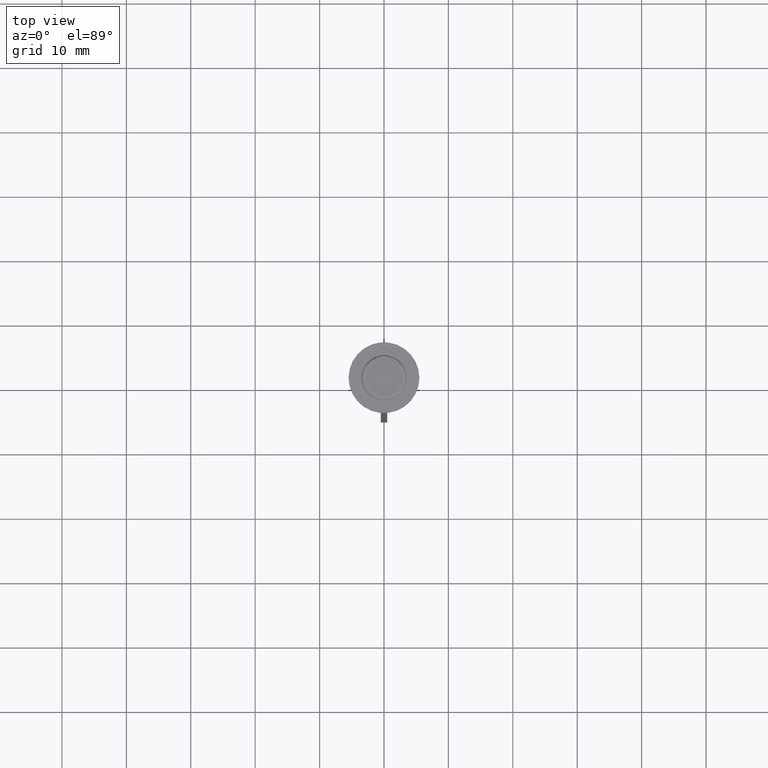
[diagram: clean part render]
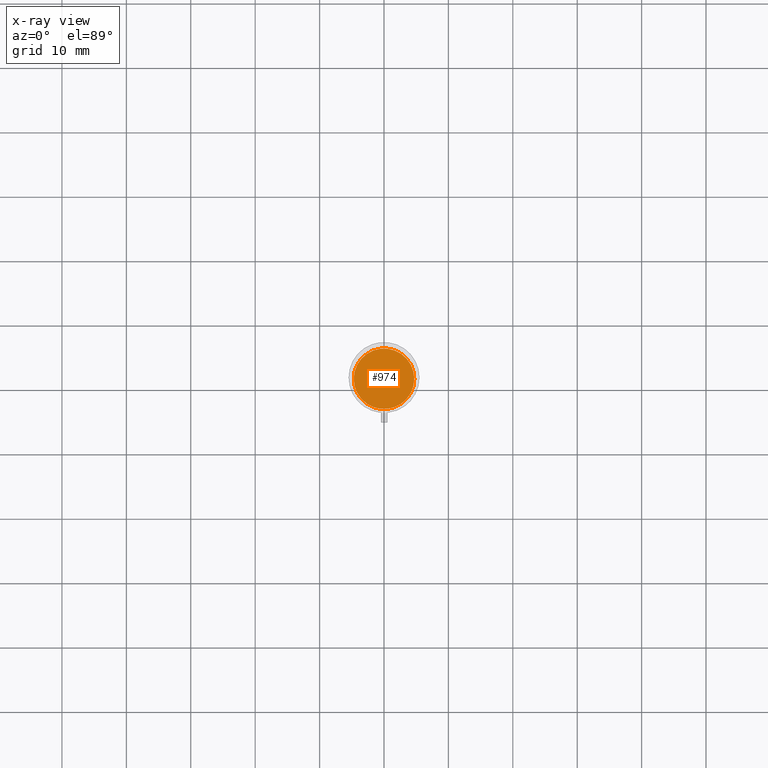
[diagram: x-ray — body ghosted, one internal face saturated and labeled with its STEP entity id]
A machine part, top view, then the same camera in x-ray: the body is ghosted and one INTERNAL B-rep face — a face not visible from any outside direction — is saturated and labeled: STEP entity #974.
In plain terms, the highlighted planar face has unit normal (0, 0, -1).
Its self-contained STEP definition (entity closure, byte-faithful):
#98 = CARTESIAN_POINT ( 'NONE',  ( 0.000000000000000000, 0.000000000000000000, -10.50000000000000178 ) ) ;
#584 = AXIS2_PLACEMENT_3D ( 'NONE', #1820, #1027, #1830 ) ;
#663 = EDGE_CURVE ( 'NONE', #2478, #1393, #951, .T. ) ;
#706 = CIRCLE ( 'NONE', #2306, 4.700000000000001066 ) ;
#907 = CARTESIAN_POINT ( 'NONE',  ( -4.700000000000001066, 0.000000000000000000, -10.50000000000000178 ) ) ;
#951 = CIRCLE ( 'NONE', #1613, 4.700000000000001066 ) ;
#974 = ADVANCED_FACE ( 'NONE', ( #2394 ), #1599, .F. ) ;
#1027 = DIRECTION ( 'NONE',  ( 0.000000000000000000, 0.000000000000000000, -1.000000000000000000 ) ) ;
#1137 = DIRECTION ( 'NONE',  ( -1.000000000000000000, 0.000000000000000000, 0.000000000000000000 ) ) ;
#1191 = EDGE_CURVE ( 'NONE', #1393, #2478, #706, .T. ) ;
#1267 = ORIENTED_EDGE ( 'NONE', *, *, #1191, .T. ) ;
#1292 = DIRECTION ( 'NONE',  ( -1.000000000000000000, 0.000000000000000000, 0.000000000000000000 ) ) ;
#1349 = EDGE_LOOP ( 'NONE', ( #2054, #1267 ) ) ;
#1393 = VERTEX_POINT ( 'NONE', #2008 ) ;
#1450 = DIRECTION ( 'NONE',  ( -0.000000000000000000, -0.000000000000000000, 1.000000000000000000 ) ) ;
#1508 = CARTESIAN_POINT ( 'NONE',  ( 0.000000000000000000, 0.000000000000000000, -10.50000000000000178 ) ) ;
#1599 = PLANE ( 'NONE',  #584 ) ;
#1613 = AXIS2_PLACEMENT_3D ( 'NONE', #98, #1450, #1292 ) ;
#1820 = CARTESIAN_POINT ( 'NONE',  ( 0.000000000000000000, 0.000000000000000000, -10.50000000000000178 ) ) ;
#1830 = DIRECTION ( 'NONE',  ( -1.000000000000000000, 0.000000000000000000, -0.000000000000000000 ) ) ;
#2008 = CARTESIAN_POINT ( 'NONE',  ( 4.700000000000001066, 5.939536975864663955E-16, -10.50000000000000178 ) ) ;
#2054 = ORIENTED_EDGE ( 'NONE', *, *, #663, .T. ) ;
#2154 = DIRECTION ( 'NONE',  ( -0.000000000000000000, -0.000000000000000000, 1.000000000000000000 ) ) ;
#2306 = AXIS2_PLACEMENT_3D ( 'NONE', #1508, #2154, #1137 ) ;
#2394 = FACE_OUTER_BOUND ( 'NONE', #1349, .T. ) ;
#2478 = VERTEX_POINT ( 'NONE', #907 ) ;